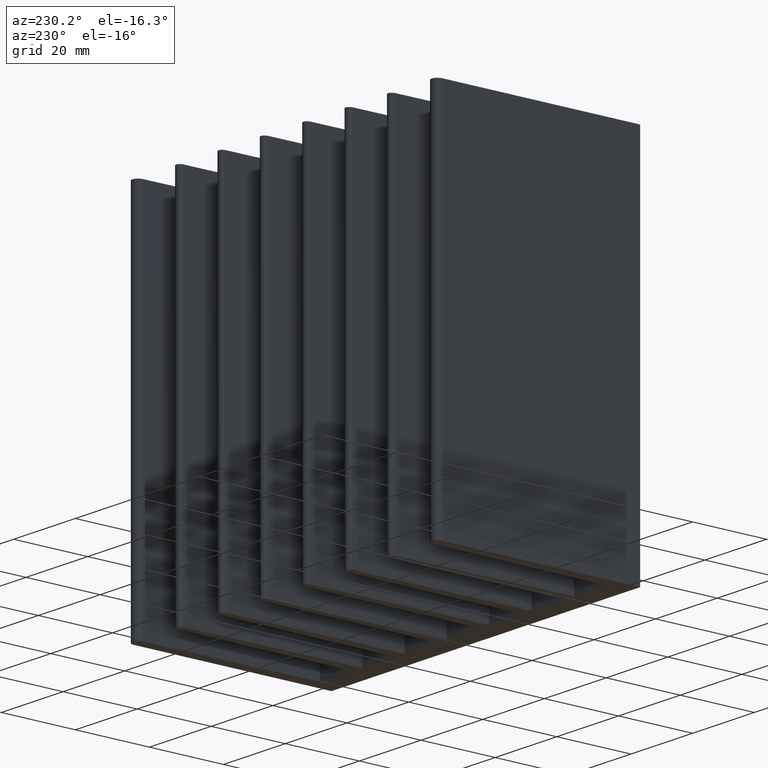
[diagram: clean part render]
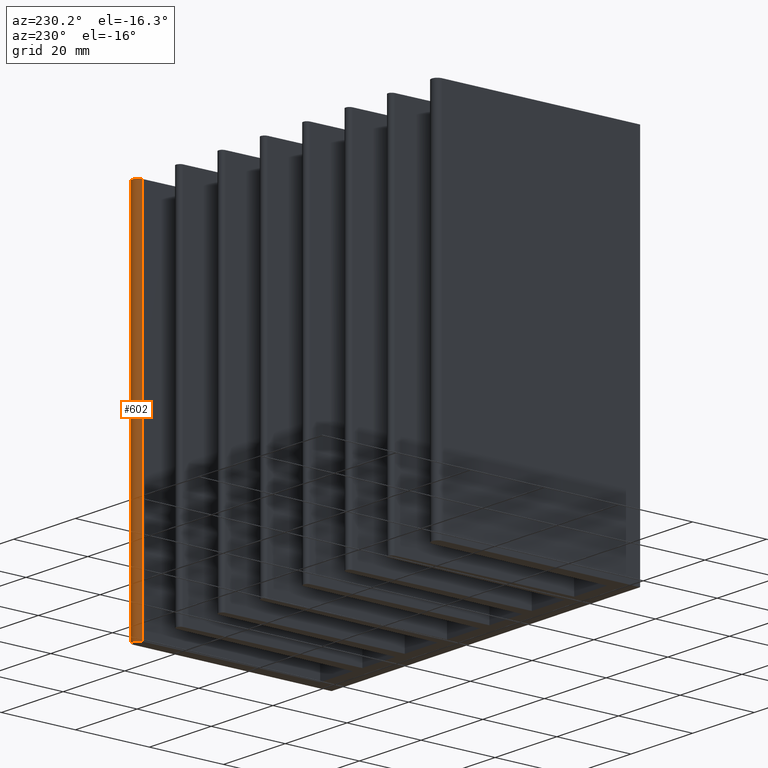
[diagram: same view with one face highlighted and labeled with its STEP entity id]
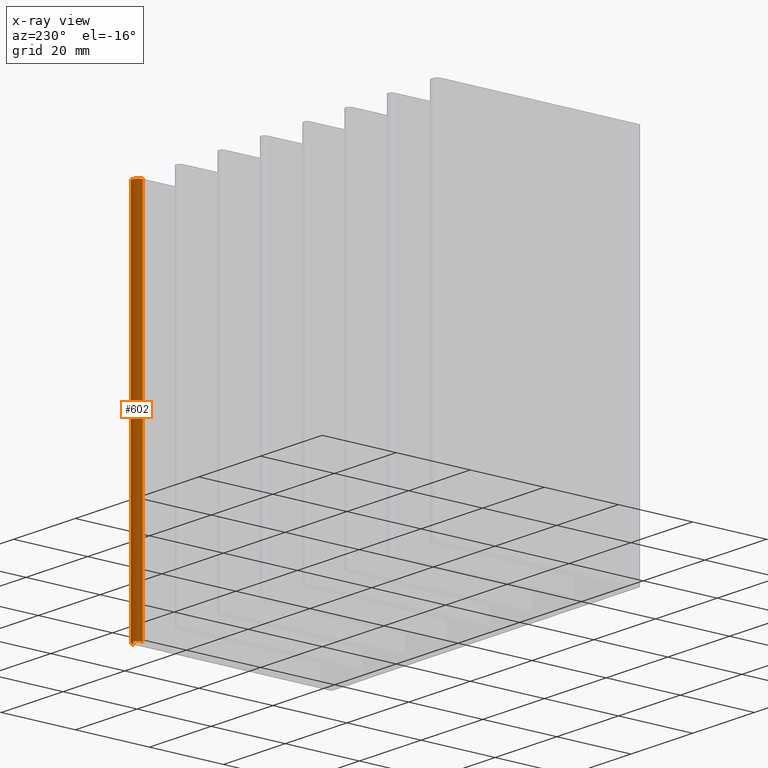
[diagram: x-ray of the same camera — body ghosted, the highlighted face saturated]
A machine part, auxiliary view. The second image highlights one B-rep face of the part: STEP entity #602.
The next image is the same camera in x-ray: the body ghosted, the highlighted face saturated — about 0% of this face is hidden behind the body in this view.
In plain terms, the highlighted cylindrical surface (edge-blend (fillet) strip) has radius 1.5 mm, axis along (-0, -0, -1).
Its self-contained STEP definition (entity closure, byte-faithful):
#11 = DIRECTION ( 'NONE',  ( -1.000000000000000000, 0.0000000000000000000, 0.0000000000000000000 ) ) ;
#20 = CARTESIAN_POINT ( 'NONE',  ( 48.49999999999970157, 25.99999999997615774, 50.00000000000000000 ) ) ;
#23 = DIRECTION ( 'NONE',  ( -0.0000000000000000000, -0.0000000000000000000, -1.000000000000000000 ) ) ;
#38 = DIRECTION ( 'NONE',  ( -0.0000000000000000000, -0.0000000000000000000, -1.000000000000000000 ) ) ;
#51 = AXIS2_PLACEMENT_3D ( 'NONE', #434, #439, #444 ) ;
#53 = ORIENTED_EDGE ( 'NONE', *, *, #330, .F. ) ;
#86 = AXIS2_PLACEMENT_3D ( 'NONE', #431, #432, #435 ) ;
#266 = DIRECTION ( 'NONE',  ( -0.0000000000000000000, -0.0000000000000000000, -1.000000000000000000 ) ) ;
#269 = CARTESIAN_POINT ( 'NONE',  ( 47.00008306797995772, 26.01578597608497745, 50.00000000000000000 ) ) ;
#303 = ORIENTED_EDGE ( 'NONE', *, *, #623, .T. ) ;
#315 = LINE ( 'NONE', #472, #367 ) ;
#330 = EDGE_CURVE ( 'NONE', #1138, #828, #822, .T. ) ;
#362 = CYLINDRICAL_SURFACE ( 'NONE', #1136, 1.500000000000403677 ) ;
#367 = VECTOR ( 'NONE', #38, 1000.000000000000000 ) ;
#393 = FACE_OUTER_BOUND ( 'NONE', #511, .T. ) ;
#431 = CARTESIAN_POINT ( 'NONE',  ( 48.49999999999970157, 25.99999999997615774, 50.00000000000000000 ) ) ;
#432 = DIRECTION ( 'NONE',  ( 0.0000000000000000000, 0.0000000000000000000, 1.000000000000000000 ) ) ;
#434 = CARTESIAN_POINT ( 'NONE',  ( 48.49999999999970157, 25.99999999997615774, -50.00000000000000000 ) ) ;
#435 = DIRECTION ( 'NONE',  ( 1.000000000000000000, 0.0000000000000000000, 0.0000000000000000000 ) ) ;
#436 = CIRCLE ( 'NONE', #86, 1.500000000000403677 ) ;
#439 = DIRECTION ( 'NONE',  ( 0.0000000000000000000, 0.0000000000000000000, 1.000000000000000000 ) ) ;
#441 = CIRCLE ( 'NONE', #51, 1.500000000000403677 ) ;
#444 = DIRECTION ( 'NONE',  ( 1.000000000000000000, 0.0000000000000000000, 0.0000000000000000000 ) ) ;
#472 = CARTESIAN_POINT ( 'NONE',  ( 50.00000000000017053, 25.99999999999999645, 50.00000000000000000 ) ) ;
#503 = ORIENTED_EDGE ( 'NONE', *, *, #520, .F. ) ;
#511 = EDGE_LOOP ( 'NONE', ( #853, #53, #503, #303 ) ) ;
#520 = EDGE_CURVE ( 'NONE', #739, #1138, #436, .T. ) ;
#537 = EDGE_CURVE ( 'NONE', #799, #828, #441, .T. ) ;
#602 = ADVANCED_FACE ( 'NONE', ( #393 ), #362, .T. ) ;
#623 = EDGE_CURVE ( 'NONE', #739, #799, #315, .T. ) ;
#639 = VECTOR ( 'NONE', #266, 1000.000000000000000 ) ;
#684 = CARTESIAN_POINT ( 'NONE',  ( 50.00000000000017053, 25.99999999999999645, 50.00000000000000000 ) ) ;
#739 = VERTEX_POINT ( 'NONE', #684 ) ;
#799 = VERTEX_POINT ( 'NONE', #806 ) ;
#806 = CARTESIAN_POINT ( 'NONE',  ( 50.00000000000017053, 25.99999999999999645, -50.00000000000000000 ) ) ;
#822 = LINE ( 'NONE', #269, #639 ) ;
#828 = VERTEX_POINT ( 'NONE', #842 ) ;
#842 = CARTESIAN_POINT ( 'NONE',  ( 47.00008306797995772, 26.01578597608497745, -50.00000000000000000 ) ) ;
#853 = ORIENTED_EDGE ( 'NONE', *, *, #537, .T. ) ;
#1022 = CARTESIAN_POINT ( 'NONE',  ( 47.00008306797995772, 26.01578597608497745, 50.00000000000000000 ) ) ;
#1136 = AXIS2_PLACEMENT_3D ( 'NONE', #20, #23, #11 ) ;
#1138 = VERTEX_POINT ( 'NONE', #1022 ) ;